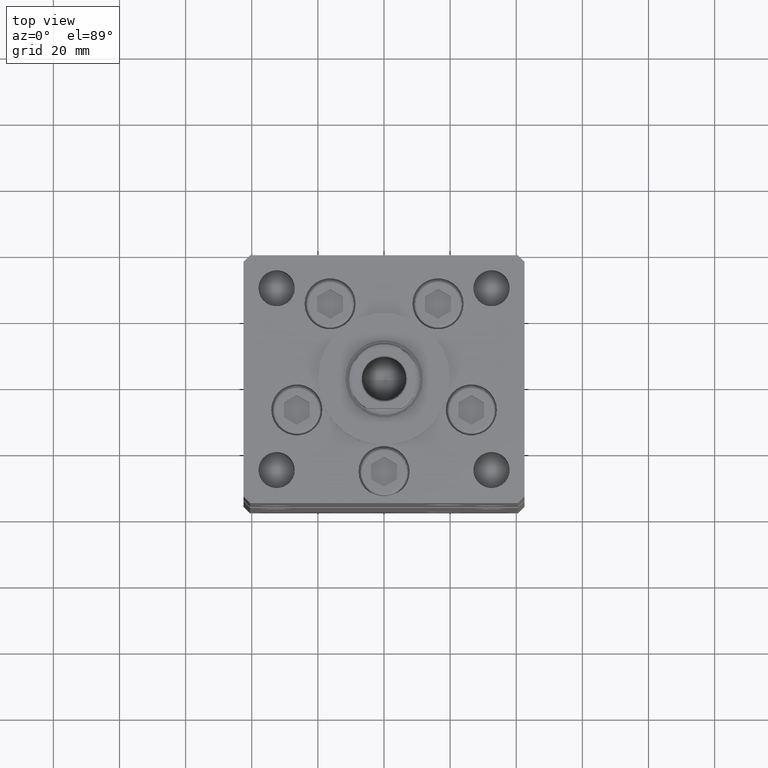
[diagram: clean part render]
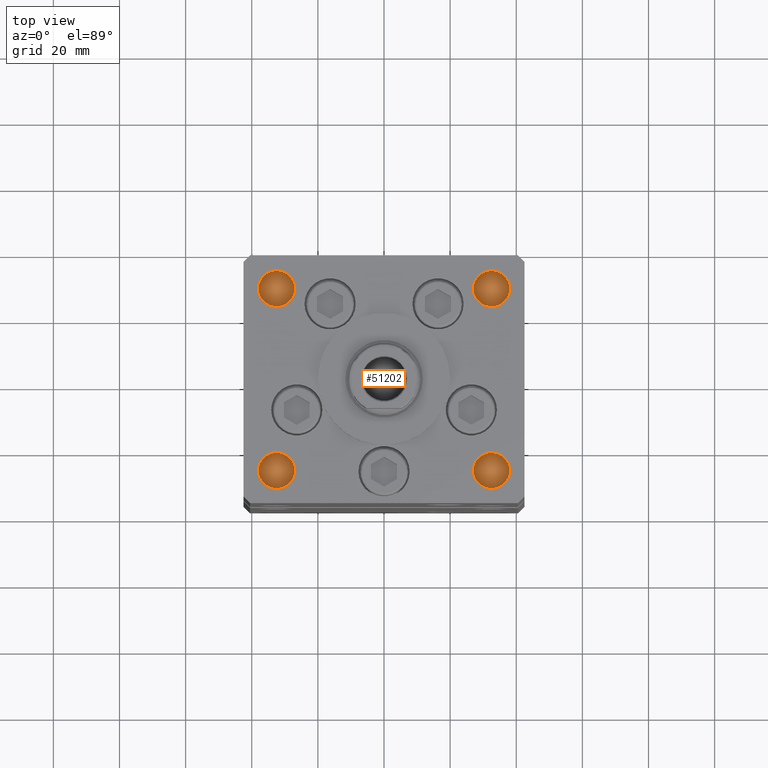
[diagram: same view with one face highlighted and labeled with its STEP entity id]
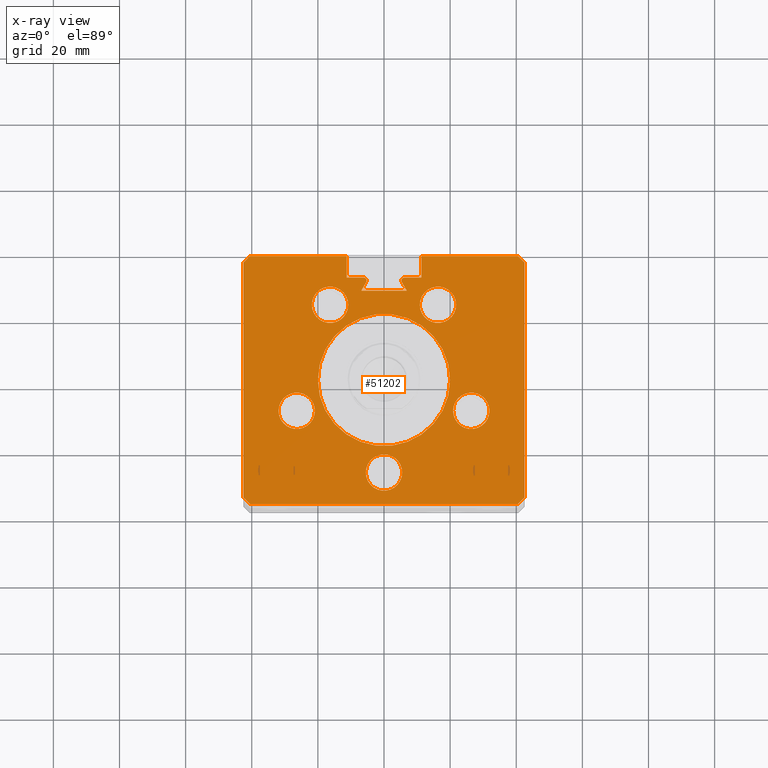
[diagram: x-ray of the same camera — body ghosted, the highlighted face saturated]
A machine part, top view. The second image highlights one B-rep face of the part: STEP entity #51202.
The next image is the same camera in x-ray: the body ghosted, the highlighted face saturated — about 0% of this face is hidden behind the body in this view.
In plain terms, the highlighted planar face has unit normal (0, 0, -1).
Its self-contained STEP definition (entity closure, byte-faithful):
#12 = AXIS2_PLACEMENT_3D ( 'NONE', #26060, #21503, #17466 ) ;
#924 = CARTESIAN_POINT ( 'NONE',  ( -5.375042956467946276, 29.59999999999899600, 148.4999999999999716 ) ) ;
#938 = EDGE_CURVE ( 'NONE', #32263, #19401, #34184, .T. ) ;
#1333 = ORIENTED_EDGE ( 'NONE', *, *, #28256, .F. ) ;
#1336 = DIRECTION ( 'NONE',  ( 0.7071067811865500152, -0.7071067811865451302, 0.000000000000000000 ) ) ;
#2119 = CARTESIAN_POINT ( 'NONE',  ( -6.876153656360465938, 26.99999999999986855, 148.5000000000000000 ) ) ;
#2159 = EDGE_CURVE ( 'NONE', #19283, #15705, #28356, .T. ) ;
#2167 = VECTOR ( 'NONE', #33487, 1000.000000000000000 ) ;
#2297 = VERTEX_POINT ( 'NONE', #32493 ) ;
#2530 = VERTEX_POINT ( 'NONE', #15769 ) ;
#2896 = CIRCLE ( 'NONE', #46692, 5.499999999999998224 ) ;
#3202 = EDGE_CURVE ( 'NONE', #12282, #33071, #33627, .T. ) ;
#3226 = CARTESIAN_POINT ( 'NONE',  ( 20.89865316429777309, -9.333333333333339255, 148.5000000000000000 ) ) ;
#3930 = CARTESIAN_POINT ( 'NONE',  ( -40.49999999999998579, -37.50000000000000711, 148.5000000000000000 ) ) ;
#4189 = EDGE_CURVE ( 'NONE', #31613, #44675, #53239, .T. ) ;
#4632 = VERTEX_POINT ( 'NONE', #46028 ) ;
#4646 = CIRCLE ( 'NONE', #32995, 0.9333333333340008142 ) ;
#4859 = ORIENTED_EDGE ( 'NONE', *, *, #11954, .F. ) ;
#5143 = CARTESIAN_POINT ( 'NONE',  ( 0.000000000000000000, 0.000000000000000000, 148.5000000000000000 ) ) ;
#5439 = ORIENTED_EDGE ( 'NONE', *, *, #46125, .F. ) ;
#5637 = ORIENTED_EDGE ( 'NONE', *, *, #21168, .F. ) ;
#6338 = EDGE_CURVE ( 'NONE', #48879, #19401, #34720, .T. ) ;
#7185 = CARTESIAN_POINT ( 'NONE',  ( -6.183333333333997928, 30.06666666666599852, 148.5000000000000000 ) ) ;
#7366 = FACE_OUTER_BOUND ( 'NONE', #22169, .T. ) ;
#7452 = DIRECTION ( 'NONE',  ( 1.000000000000000000, 0.000000000000000000, 0.000000000000000000 ) ) ;
#7712 = CARTESIAN_POINT ( 'NONE',  ( 26.39865316429776954, -9.333333333333339255, 148.5000000000000000 ) ) ;
#8001 = DIRECTION ( 'NONE',  ( 1.000000000000000000, 0.000000000000000000, 0.000000000000000000 ) ) ;
#8092 = EDGE_CURVE ( 'NONE', #41647, #50267, #42788, .T. ) ;
#8095 = VECTOR ( 'NONE', #48235, 1000.000000000000000 ) ;
#8184 = DIRECTION ( 'NONE',  ( 0.4999999999999993894, 0.8660254037844390407, 0.000000000000000000 ) ) ;
#8246 = CARTESIAN_POINT ( 'NONE',  ( -11.24999999999999822, 37.50000000000000000, 148.5000000000000000 ) ) ;
#8412 = EDGE_CURVE ( 'NONE', #2297, #49584, #11256, .T. ) ;
#8475 = CARTESIAN_POINT ( 'NONE',  ( -11.24999999999999822, 0.000000000000000000, 148.5000000000000000 ) ) ;
#8657 = DIRECTION ( 'NONE',  ( -0.7071067811865474617, -0.7071067811865474617, 0.000000000000000000 ) ) ;
#8661 = VECTOR ( 'NONE', #1336, 1000.000000000000114 ) ;
#8859 = ORIENTED_EDGE ( 'NONE', *, *, #3202, .F. ) ;
#9239 = CIRCLE ( 'NONE', #11842, 5.499999999999998224 ) ;
#9646 = CARTESIAN_POINT ( 'NONE',  ( 16.32291334290543361, 22.75000000000000000, 148.5000000000000000 ) ) ;
#9942 = CARTESIAN_POINT ( 'NONE',  ( -16.32291334290543361, 22.74999999999999645, 148.5000000000000000 ) ) ;
#10234 = DIRECTION ( 'NONE',  ( -3.909236002201255146E-16, -1.000000000000000000, 0.000000000000000000 ) ) ;
#10324 = CARTESIAN_POINT ( 'NONE',  ( 0.000000000000000000, 31.00000000000000000, 148.5000000000000000 ) ) ;
#10382 = EDGE_CURVE ( 'NONE', #15705, #19283, #46542, .T. ) ;
#10842 = ORIENTED_EDGE ( 'NONE', *, *, #42940, .T. ) ;
#10902 = CARTESIAN_POINT ( 'NONE',  ( 16.84845819336020867, 9.727461873366657130, 148.5000000000000000 ) ) ;
#11180 = VECTOR ( 'NONE', #30157, 1000.000000000000000 ) ;
#11256 = CIRCLE ( 'NONE', #13831, 5.499999999999998224 ) ;
#11323 = VERTEX_POINT ( 'NONE', #24324 ) ;
#11411 = FACE_BOUND ( 'NONE', #41339, .T. ) ;
#11842 = AXIS2_PLACEMENT_3D ( 'NONE', #35300, #14857, #31258 ) ;
#11879 = ORIENTED_EDGE ( 'NONE', *, *, #38631, .F. ) ;
#11954 = EDGE_CURVE ( 'NONE', #44675, #31613, #37155, .T. ) ;
#12022 = CARTESIAN_POINT ( 'NONE',  ( -31.89865316429776954, -9.333333333333342807, 148.5000000000000000 ) ) ;
#12225 = LINE ( 'NONE', #36715, #25702 ) ;
#12231 = AXIS2_PLACEMENT_3D ( 'NONE', #23514, #23779, #31317 ) ;
#12283 = VERTEX_POINT ( 'NONE', #42786 ) ;
#12282 = VERTEX_POINT ( 'NONE', #26378 ) ;
#13032 = CARTESIAN_POINT ( 'NONE',  ( 1.714505518806294638E-15, -28.00000000000000000, 148.5000000000000000 ) ) ;
#13104 = CARTESIAN_POINT ( 'NONE',  ( -16.32291334290543361, 22.74999999999999645, 148.5000000000000000 ) ) ;
#13556 = DIRECTION ( 'NONE',  ( 0.000000000000000000, 0.000000000000000000, 1.000000000000000000 ) ) ;
#13831 = AXIS2_PLACEMENT_3D ( 'NONE', #9646, #46243, #30353 ) ;
#13869 = DIRECTION ( 'NONE',  ( -0.7071067811865500152, -0.7071067811865451302, 0.000000000000000000 ) ) ;
#14091 = CIRCLE ( 'NONE', #32145, 5.500000000000000000 ) ;
#14252 = DIRECTION ( 'NONE',  ( 0.000000000000000000, 0.000000000000000000, 1.000000000000000000 ) ) ;
#14294 = ORIENTED_EDGE ( 'NONE', *, *, #22576, .F. ) ;
#14857 = DIRECTION ( 'NONE',  ( 0.000000000000000000, 0.000000000000000000, 1.000000000000000000 ) ) ;
#14919 = FACE_BOUND ( 'NONE', #43327, .T. ) ;
#15156 = DIRECTION ( 'NONE',  ( 0.000000000000000000, 0.000000000000000000, -1.000000000000000000 ) ) ;
#15299 = EDGE_CURVE ( 'NONE', #46925, #37170, #2896, .T. ) ;
#15372 = VECTOR ( 'NONE', #16315, 1000.000000000000000 ) ;
#15705 = VERTEX_POINT ( 'NONE', #25954 ) ;
#15769 = CARTESIAN_POINT ( 'NONE',  ( 11.24999999999999112, 37.50000000000000000, 148.5000000000000000 ) ) ;
#16245 = DIRECTION ( 'NONE',  ( -1.000000000000000000, 0.000000000000000000, 0.000000000000000000 ) ) ;
#16315 = DIRECTION ( 'NONE',  ( -0.000000000000000000, -1.000000000000000000, 0.000000000000000000 ) ) ;
#16396 = ORIENTED_EDGE ( 'NONE', *, *, #938, .F. ) ;
#16731 = VERTEX_POINT ( 'NONE', #43349 ) ;
#16787 = LINE ( 'NONE', #48791, #31509 ) ;
#16827 = LINE ( 'NONE', #8475, #2167 ) ;
#16869 = AXIS2_PLACEMENT_3D ( 'NONE', #43700, #35653, #48547 ) ;
#17466 = DIRECTION ( 'NONE',  ( 1.000000000000000000, 0.000000000000000000, 0.000000000000000000 ) ) ;
#17572 = ORIENTED_EDGE ( 'NONE', *, *, #38634, .F. ) ;
#17782 = DIRECTION ( 'NONE',  ( -0.000000000000000000, 0.000000000000000000, 1.000000000000000000 ) ) ;
#17786 = CARTESIAN_POINT ( 'NONE',  ( 0.000000000000000000, 26.99999999999986855, 148.5000000000000000 ) ) ;
#17790 = AXIS2_PLACEMENT_3D ( 'NONE', #5143, #17782, #25599 ) ;
#18143 = CARTESIAN_POINT ( 'NONE',  ( -26.39865316429776954, -9.333333333333342807, 148.5000000000000000 ) ) ;
#18386 = LINE ( 'NONE', #39109, #8095 ) ;
#19081 = CIRCLE ( 'NONE', #46547, 20.00000000000000000 ) ;
#19283 = VERTEX_POINT ( 'NONE', #12022 ) ;
#19401 = VERTEX_POINT ( 'NONE', #30009 ) ;
#19704 = ORIENTED_EDGE ( 'NONE', *, *, #30321, .T. ) ;
#19761 = ORIENTED_EDGE ( 'NONE', *, *, #30267, .T. ) ;
#19894 = ORIENTED_EDGE ( 'NONE', *, *, #10382, .F. ) ;
#20597 = VECTOR ( 'NONE', #8657, 1000.000000000000114 ) ;
#21168 = EDGE_CURVE ( 'NONE', #27081, #44425, #14091, .T. ) ;
#21503 = DIRECTION ( 'NONE',  ( 0.000000000000000000, 0.000000000000000000, 1.000000000000000000 ) ) ;
#21550 = VERTEX_POINT ( 'NONE', #8246 ) ;
#21618 = DIRECTION ( 'NONE',  ( 1.000000000000000000, 0.000000000000000000, 0.000000000000000000 ) ) ;
#21919 = EDGE_CURVE ( 'NONE', #36284, #33021, #4646, .T. ) ;
#22061 = CARTESIAN_POINT ( 'NONE',  ( -5.249999999999996447, 30.06666666666599852, 148.5000000000000000 ) ) ;
#22169 = EDGE_LOOP ( 'NONE', ( #38661, #49480, #5439, #33659, #43386, #19704, #50806, #16396, #33131, #8859, #44670, #41716, #19761, #28012, #22826, #36307, #10842, #11879, #1333 ) ) ;
#22576 = EDGE_CURVE ( 'NONE', #44425, #27081, #36494, .T. ) ;
#22653 = CARTESIAN_POINT ( 'NONE',  ( -10.82291334290543539, 22.74999999999999645, 148.5000000000000000 ) ) ;
#22826 = ORIENTED_EDGE ( 'NONE', *, *, #32752, .T. ) ;
#23013 = DIRECTION ( 'NONE',  ( 0.4999999999999993894, -0.8660254037844390407, 0.000000000000000000 ) ) ;
#23096 = EDGE_CURVE ( 'NONE', #12283, #28094, #18386, .T. ) ;
#23260 = DIRECTION ( 'NONE',  ( 0.000000000000000000, 0.000000000000000000, 1.000000000000000000 ) ) ;
#23286 = AXIS2_PLACEMENT_3D ( 'NONE', #48268, #23260, #39142 ) ;
#23317 = CARTESIAN_POINT ( 'NONE',  ( 6.876153656360465938, 26.99999999999986855, 148.5000000000000000 ) ) ;
#23514 = CARTESIAN_POINT ( 'NONE',  ( 0.000000000000000000, 0.000000000000000000, 148.5000000000000000 ) ) ;
#23604 = DIRECTION ( 'NONE',  ( 0.000000000000000000, 0.000000000000000000, -1.000000000000000000 ) ) ;
#23779 = DIRECTION ( 'NONE',  ( 0.000000000000000000, 0.000000000000000000, -1.000000000000000000 ) ) ;
#23796 = EDGE_CURVE ( 'NONE', #2530, #12282, #47773, .T. ) ;
#23864 = DIRECTION ( 'NONE',  ( 1.000000000000000000, 0.000000000000000000, 0.000000000000000000 ) ) ;
#24088 = VECTOR ( 'NONE', #13869, 1000.000000000000114 ) ;
#24324 = CARTESIAN_POINT ( 'NONE',  ( -20.00000000000000000, 0.000000000000000000, 148.5000000000000000 ) ) ;
#24935 = EDGE_CURVE ( 'NONE', #4632, #21550, #16827, .T. ) ;
#24947 = VECTOR ( 'NONE', #21618, 1000.000000000000000 ) ;
#25599 = DIRECTION ( 'NONE',  ( 1.000000000000000000, 0.000000000000000000, 0.000000000000000000 ) ) ;
#25702 = VECTOR ( 'NONE', #8184, 999.9999999999998863 ) ;
#25918 = CARTESIAN_POINT ( 'NONE',  ( -11.24999999999999822, 37.50000000000000000, 148.5000000000000000 ) ) ;
#25933 = AXIS2_PLACEMENT_3D ( 'NONE', #18143, #49920, #38337 ) ;
#25934 = DIRECTION ( 'NONE',  ( 1.000000000000000000, 0.000000000000000000, 0.000000000000000000 ) ) ;
#25954 = CARTESIAN_POINT ( 'NONE',  ( -20.89865316429777309, -9.333333333333342807, 148.5000000000000000 ) ) ;
#26060 = CARTESIAN_POINT ( 'NONE',  ( -26.39865316429776954, -9.333333333333342807, 148.5000000000000000 ) ) ;
#26072 = EDGE_CURVE ( 'NONE', #40491, #4632, #51216, .T. ) ;
#26240 = LINE ( 'NONE', #30005, #24088 ) ;
#26349 = DIRECTION ( 'NONE',  ( 1.000000000000000000, 0.000000000000000000, 0.000000000000000000 ) ) ;
#26378 = CARTESIAN_POINT ( 'NONE',  ( 40.50000000000000711, 37.50000000000000000, 148.5000000000000000 ) ) ;
#27044 = LINE ( 'NONE', #10902, #34957 ) ;
#27081 = VERTEX_POINT ( 'NONE', #22653 ) ;
#27330 = CARTESIAN_POINT ( 'NONE',  ( -11.24999999999999822, 37.50000000000000000, 148.5000000000000000 ) ) ;
#28012 = ORIENTED_EDGE ( 'NONE', *, *, #21919, .F. ) ;
#28094 = VERTEX_POINT ( 'NONE', #36779 ) ;
#28109 = VECTOR ( 'NONE', #16245, 1000.000000000000000 ) ;
#28256 = EDGE_CURVE ( 'NONE', #40491, #42219, #51207, .T. ) ;
#28325 = ORIENTED_EDGE ( 'NONE', *, *, #15299, .F. ) ;
#28356 = CIRCLE ( 'NONE', #12, 5.499999999999998224 ) ;
#28445 = EDGE_LOOP ( 'NONE', ( #30665, #4859 ) ) ;
#29013 = CARTESIAN_POINT ( 'NONE',  ( 42.50000000000001421, 35.50000000000000711, 148.5000000000000000 ) ) ;
#29040 = CARTESIAN_POINT ( 'NONE',  ( -6.183333333333997928, 31.00000000000000000, 148.5000000000000000 ) ) ;
#29123 = AXIS2_PLACEMENT_3D ( 'NONE', #7712, #36247, #23864 ) ;
#29147 = DIRECTION ( 'NONE',  ( 0.7071067811865474617, -0.7071067811865474617, 0.000000000000000000 ) ) ;
#29262 = CARTESIAN_POINT ( 'NONE',  ( 26.39865316429776954, -9.333333333333339255, 148.5000000000000000 ) ) ;
#29287 = CARTESIAN_POINT ( 'NONE',  ( 6.183333333333997928, 31.00000000000000000, 148.5000000000000000 ) ) ;
#30005 = CARTESIAN_POINT ( 'NONE',  ( -40.50000000000000711, 37.50000000000000000, 148.5000000000000000 ) ) ;
#30009 = CARTESIAN_POINT ( 'NONE',  ( 40.49999999999998579, -37.50000000000000711, 148.5000000000000000 ) ) ;
#30112 = CARTESIAN_POINT ( 'NONE',  ( 40.50000000000000711, 37.50000000000000000, 148.5000000000000000 ) ) ;
#30157 = DIRECTION ( 'NONE',  ( 1.000000000000000000, 0.000000000000000000, 0.000000000000000000 ) ) ;
#30267 = EDGE_CURVE ( 'NONE', #16731, #33021, #37500, .T. ) ;
#30321 = EDGE_CURVE ( 'NONE', #28094, #48879, #16787, .T. ) ;
#30353 = DIRECTION ( 'NONE',  ( 1.000000000000000000, 0.000000000000000000, 0.000000000000000000 ) ) ;
#30665 = ORIENTED_EDGE ( 'NONE', *, *, #4189, .F. ) ;
#31178 = ORIENTED_EDGE ( 'NONE', *, *, #8412, .F. ) ;
#31258 = DIRECTION ( 'NONE',  ( 1.000000000000000000, 0.000000000000000000, 0.000000000000000000 ) ) ;
#31317 = DIRECTION ( 'NONE',  ( -1.000000000000000000, 0.000000000000000000, -0.000000000000000000 ) ) ;
#31509 = VECTOR ( 'NONE', #29147, 1000.000000000000114 ) ;
#31613 = VERTEX_POINT ( 'NONE', #50261 ) ;
#31917 = CARTESIAN_POINT ( 'NONE',  ( -5.499999999999998224, -28.00000000000000000, 148.5000000000000000 ) ) ;
#31999 = EDGE_LOOP ( 'NONE', ( #40479, #35606 ) ) ;
#32145 = AXIS2_PLACEMENT_3D ( 'NONE', #9942, #14252, #26349 ) ;
#32249 = CARTESIAN_POINT ( 'NONE',  ( -21.82291334290543361, 22.74999999999999645, 148.5000000000000000 ) ) ;
#32263 = VERTEX_POINT ( 'NONE', #43567 ) ;
#32421 = CARTESIAN_POINT ( 'NONE',  ( 10.82291334290543894, 22.75000000000000000, 148.5000000000000000 ) ) ;
#32493 = CARTESIAN_POINT ( 'NONE',  ( 21.82291334290543361, 22.75000000000000000, 148.5000000000000000 ) ) ;
#32752 = EDGE_CURVE ( 'NONE', #36284, #41647, #27044, .T. ) ;
#32930 = EDGE_CURVE ( 'NONE', #11323, #44617, #41006, .T. ) ;
#32995 = AXIS2_PLACEMENT_3D ( 'NONE', #48758, #15156, #52800 ) ;
#33021 = VERTEX_POINT ( 'NONE', #29287 ) ;
#33071 = VERTEX_POINT ( 'NONE', #29013 ) ;
#33131 = ORIENTED_EDGE ( 'NONE', *, *, #53136, .F. ) ;
#33487 = DIRECTION ( 'NONE',  ( 0.000000000000000000, 1.000000000000000000, 0.000000000000000000 ) ) ;
#33571 = VECTOR ( 'NONE', #50082, 1000.000000000000000 ) ;
#33627 = LINE ( 'NONE', #30112, #8661 ) ;
#33659 = ORIENTED_EDGE ( 'NONE', *, *, #45791, .T. ) ;
#34184 = LINE ( 'NONE', #50586, #20597 ) ;
#34266 = CIRCLE ( 'NONE', #29123, 5.499999999999998224 ) ;
#34563 = DIRECTION ( 'NONE',  ( -0.000000000000000000, 0.000000000000000000, 1.000000000000000000 ) ) ;
#34720 = LINE ( 'NONE', #43047, #11180 ) ;
#34789 = VECTOR ( 'NONE', #48312, 1000.000000000000000 ) ;
#34957 = VECTOR ( 'NONE', #23013, 999.9999999999998863 ) ;
#35119 = EDGE_CURVE ( 'NONE', #49584, #2297, #9239, .T. ) ;
#35154 = CARTESIAN_POINT ( 'NONE',  ( 20.00000000000000000, 2.449293598294706513E-15, 148.5000000000000000 ) ) ;
#35300 = CARTESIAN_POINT ( 'NONE',  ( 16.32291334290543361, 22.75000000000000000, 148.5000000000000000 ) ) ;
#35427 = CARTESIAN_POINT ( 'NONE',  ( -40.50000000000000711, 37.50000000000000000, 148.5000000000000000 ) ) ;
#35606 = ORIENTED_EDGE ( 'NONE', *, *, #51137, .F. ) ;
#35653 = DIRECTION ( 'NONE',  ( 0.000000000000000000, 0.000000000000000000, -1.000000000000000000 ) ) ;
#36247 = DIRECTION ( 'NONE',  ( 0.000000000000000000, 0.000000000000000000, 1.000000000000000000 ) ) ;
#36284 = VERTEX_POINT ( 'NONE', #46544 ) ;
#36300 = AXIS2_PLACEMENT_3D ( 'NONE', #13032, #13556, #25934 ) ;
#36307 = ORIENTED_EDGE ( 'NONE', *, *, #8092, .T. ) ;
#36494 = CIRCLE ( 'NONE', #51908, 5.500000000000000000 ) ;
#36715 = CARTESIAN_POINT ( 'NONE',  ( -16.84845819336020867, 9.727461873366657130, 148.5000000000000000 ) ) ;
#36779 = CARTESIAN_POINT ( 'NONE',  ( -42.49999999999998579, -35.50000000000000711, 148.5000000000000000 ) ) ;
#37155 = CIRCLE ( 'NONE', #36300, 5.500000000000000000 ) ;
#37170 = VERTEX_POINT ( 'NONE', #3226 ) ;
#37500 = LINE ( 'NONE', #45817, #28109 ) ;
#38337 = DIRECTION ( 'NONE',  ( 1.000000000000000000, 0.000000000000000000, 0.000000000000000000 ) ) ;
#38631 = EDGE_CURVE ( 'NONE', #42219, #39889, #49742, .T. ) ;
#38634 = EDGE_CURVE ( 'NONE', #37170, #46925, #34266, .T. ) ;
#38661 = ORIENTED_EDGE ( 'NONE', *, *, #26072, .T. ) ;
#38774 = LINE ( 'NONE', #47096, #38874 ) ;
#38864 = DIRECTION ( 'NONE',  ( 1.000000000000000000, 0.000000000000000000, 0.000000000000000000 ) ) ;
#38874 = VECTOR ( 'NONE', #10234, 1000.000000000000000 ) ;
#39109 = CARTESIAN_POINT ( 'NONE',  ( -42.50000000000001421, 35.50000000000000711, 148.5000000000000000 ) ) ;
#39142 = DIRECTION ( 'NONE',  ( 1.000000000000000000, 0.000000000000000000, 0.000000000000000000 ) ) ;
#39889 = VERTEX_POINT ( 'NONE', #924 ) ;
#40479 = ORIENTED_EDGE ( 'NONE', *, *, #32930, .F. ) ;
#40491 = VERTEX_POINT ( 'NONE', #29040 ) ;
#41006 = CIRCLE ( 'NONE', #17790, 20.00000000000000000 ) ;
#41339 = EDGE_LOOP ( 'NONE', ( #28325, #17572 ) ) ;
#41633 = DIRECTION ( 'NONE',  ( 0.000000000000000000, 0.000000000000000000, 1.000000000000000000 ) ) ;
#41647 = VERTEX_POINT ( 'NONE', #23317 ) ;
#41716 = ORIENTED_EDGE ( 'NONE', *, *, #41719, .T. ) ;
#41719 = EDGE_CURVE ( 'NONE', #2530, #16731, #45890, .T. ) ;
#42219 = VERTEX_POINT ( 'NONE', #22061 ) ;
#42599 = ORIENTED_EDGE ( 'NONE', *, *, #2159, .F. ) ;
#42786 = CARTESIAN_POINT ( 'NONE',  ( -42.50000000000001421, 35.50000000000000711, 148.5000000000000000 ) ) ;
#42788 = LINE ( 'NONE', #17786, #33571 ) ;
#42940 = EDGE_CURVE ( 'NONE', #50267, #39889, #12225, .T. ) ;
#43047 = CARTESIAN_POINT ( 'NONE',  ( -40.49999999999998579, -37.50000000000000711, 148.5000000000000000 ) ) ;
#43327 = EDGE_LOOP ( 'NONE', ( #5637, #14294 ) ) ;
#43349 = CARTESIAN_POINT ( 'NONE',  ( 11.24999999999999822, 31.00000000000000000, 148.5000000000000000 ) ) ;
#43368 = LINE ( 'NONE', #25918, #24947 ) ;
#43386 = ORIENTED_EDGE ( 'NONE', *, *, #23096, .T. ) ;
#43450 = VECTOR ( 'NONE', #46659, 1000.000000000000000 ) ;
#43567 = CARTESIAN_POINT ( 'NONE',  ( 42.49999999999998579, -35.50000000000000711, 148.5000000000000000 ) ) ;
#43700 = CARTESIAN_POINT ( 'NONE',  ( -6.183333333333997928, 30.06666666666599852, 148.5000000000000000 ) ) ;
#44425 = VERTEX_POINT ( 'NONE', #32249 ) ;
#44617 = VERTEX_POINT ( 'NONE', #35154 ) ;
#44670 = ORIENTED_EDGE ( 'NONE', *, *, #23796, .F. ) ;
#44675 = VERTEX_POINT ( 'NONE', #31917 ) ;
#44686 = VERTEX_POINT ( 'NONE', #35427 ) ;
#44763 = FACE_BOUND ( 'NONE', #47871, .T. ) ;
#45446 = AXIS2_PLACEMENT_3D ( 'NONE', #7185, #23604, #7452 ) ;
#45576 = CARTESIAN_POINT ( 'NONE',  ( 31.89865316429776954, -9.333333333333339255, 148.5000000000000000 ) ) ;
#45791 = EDGE_CURVE ( 'NONE', #44686, #12283, #26240, .T. ) ;
#45817 = CARTESIAN_POINT ( 'NONE',  ( 0.000000000000000000, 31.00000000000000000, 148.5000000000000000 ) ) ;
#45890 = LINE ( 'NONE', #53165, #15372 ) ;
#46028 = CARTESIAN_POINT ( 'NONE',  ( -11.24999999999999822, 31.00000000000000000, 148.5000000000000000 ) ) ;
#46125 = EDGE_CURVE ( 'NONE', #44686, #21550, #43368, .T. ) ;
#46243 = DIRECTION ( 'NONE',  ( 0.000000000000000000, 0.000000000000000000, 1.000000000000000000 ) ) ;
#46408 = CARTESIAN_POINT ( 'NONE',  ( 0.000000000000000000, 0.000000000000000000, 148.5000000000000000 ) ) ;
#46542 = CIRCLE ( 'NONE', #25933, 5.499999999999998224 ) ;
#46544 = CARTESIAN_POINT ( 'NONE',  ( 5.375042956467946276, 29.59999999999899600, 148.5000000000000000 ) ) ;
#46547 = AXIS2_PLACEMENT_3D ( 'NONE', #46408, #34563, #38864 ) ;
#46659 = DIRECTION ( 'NONE',  ( -1.000000000000000000, 0.000000000000000000, 0.000000000000000000 ) ) ;
#46692 = AXIS2_PLACEMENT_3D ( 'NONE', #29262, #41633, #49696 ) ;
#46925 = VERTEX_POINT ( 'NONE', #45576 ) ;
#47096 = CARTESIAN_POINT ( 'NONE',  ( 42.50000000000001421, 35.50000000000000711, 148.5000000000000000 ) ) ;
#47773 = LINE ( 'NONE', #27330, #34789 ) ;
#47871 = EDGE_LOOP ( 'NONE', ( #31178, #48860 ) ) ;
#48235 = DIRECTION ( 'NONE',  ( 3.909236002201255146E-16, -1.000000000000000000, 0.000000000000000000 ) ) ;
#48268 = CARTESIAN_POINT ( 'NONE',  ( 1.714505518806294638E-15, -28.00000000000000000, 148.5000000000000000 ) ) ;
#48312 = DIRECTION ( 'NONE',  ( 1.000000000000000000, 0.000000000000000000, 0.000000000000000000 ) ) ;
#48547 = DIRECTION ( 'NONE',  ( 1.000000000000000000, 0.000000000000000000, 0.000000000000000000 ) ) ;
#48758 = CARTESIAN_POINT ( 'NONE',  ( 6.183333333333997928, 30.06666666666599852, 148.5000000000000000 ) ) ;
#48785 = FACE_BOUND ( 'NONE', #51930, .T. ) ;
#48791 = CARTESIAN_POINT ( 'NONE',  ( -42.49999999999998579, -35.50000000000000711, 148.5000000000000000 ) ) ;
#48860 = ORIENTED_EDGE ( 'NONE', *, *, #35119, .F. ) ;
#48879 = VERTEX_POINT ( 'NONE', #3930 ) ;
#49480 = ORIENTED_EDGE ( 'NONE', *, *, #24935, .T. ) ;
#49584 = VERTEX_POINT ( 'NONE', #32421 ) ;
#49696 = DIRECTION ( 'NONE',  ( 1.000000000000000000, 0.000000000000000000, 0.000000000000000000 ) ) ;
#49742 = CIRCLE ( 'NONE', #45446, 0.9333333333340008142 ) ;
#49920 = DIRECTION ( 'NONE',  ( 0.000000000000000000, 0.000000000000000000, 1.000000000000000000 ) ) ;
#50082 = DIRECTION ( 'NONE',  ( -1.000000000000000000, 0.000000000000000000, 0.000000000000000000 ) ) ;
#50261 = CARTESIAN_POINT ( 'NONE',  ( 5.500000000000001776, -28.00000000000000000, 148.5000000000000000 ) ) ;
#50267 = VERTEX_POINT ( 'NONE', #2119 ) ;
#50586 = CARTESIAN_POINT ( 'NONE',  ( 42.49999999999998579, -35.50000000000000711, 148.5000000000000000 ) ) ;
#50806 = ORIENTED_EDGE ( 'NONE', *, *, #6338, .T. ) ;
#51137 = EDGE_CURVE ( 'NONE', #44617, #11323, #19081, .T. ) ;
#51202 = ADVANCED_FACE ( 'NONE', ( #48785, #51759, #11411, #44763, #14919, #7366, #52569 ), #52296, .F. ) ;
#51207 = CIRCLE ( 'NONE', #16869, 0.9333333333340008142 ) ;
#51216 = LINE ( 'NONE', #10324, #43450 ) ;
#51759 = FACE_BOUND ( 'NONE', #28445, .T. ) ;
#51908 = AXIS2_PLACEMENT_3D ( 'NONE', #13104, #52935, #8001 ) ;
#51930 = EDGE_LOOP ( 'NONE', ( #19894, #42599 ) ) ;
#52296 = PLANE ( 'NONE',  #12231 ) ;
#52569 = FACE_BOUND ( 'NONE', #31999, .T. ) ;
#52800 = DIRECTION ( 'NONE',  ( 1.000000000000000000, 0.000000000000000000, 0.000000000000000000 ) ) ;
#52935 = DIRECTION ( 'NONE',  ( 0.000000000000000000, 0.000000000000000000, 1.000000000000000000 ) ) ;
#53136 = EDGE_CURVE ( 'NONE', #33071, #32263, #38774, .T. ) ;
#53165 = CARTESIAN_POINT ( 'NONE',  ( 11.24999999999999822, 0.000000000000000000, 148.5000000000000000 ) ) ;
#53239 = CIRCLE ( 'NONE', #23286, 5.500000000000000000 ) ;